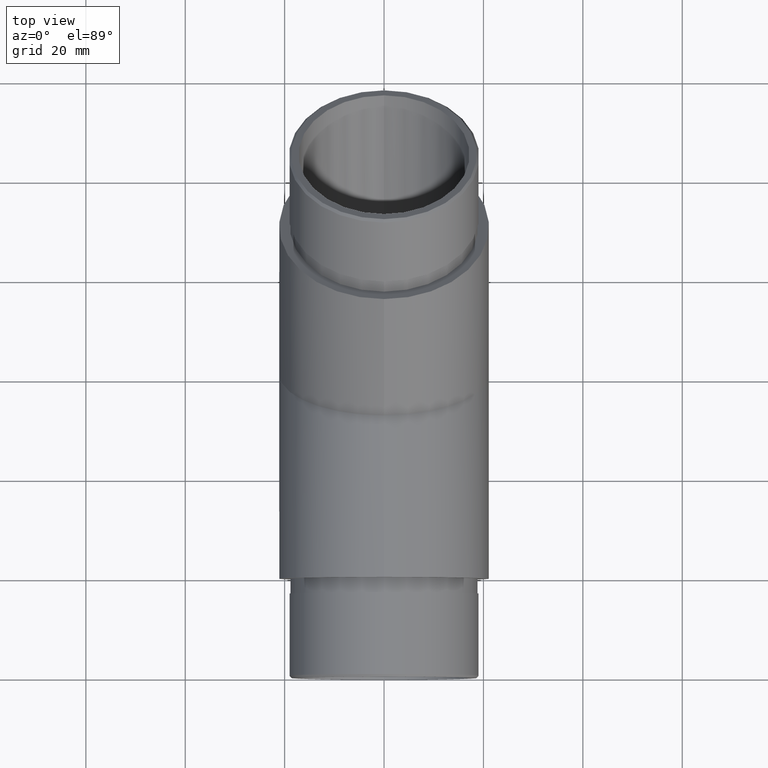
[diagram: clean part render]
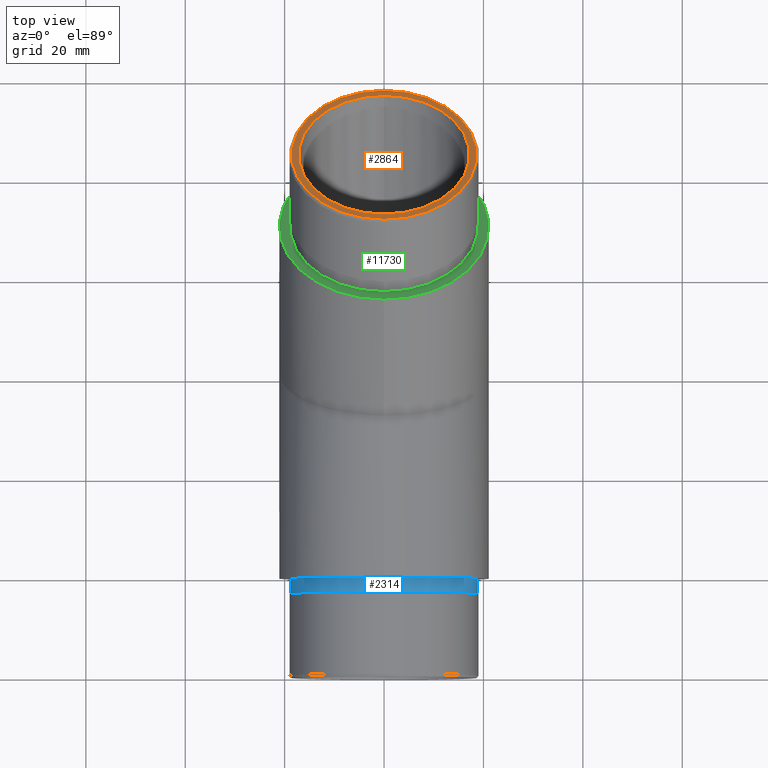
[diagram: same view with three faces highlighted in distinct colors, each labeled with its STEP entity id]
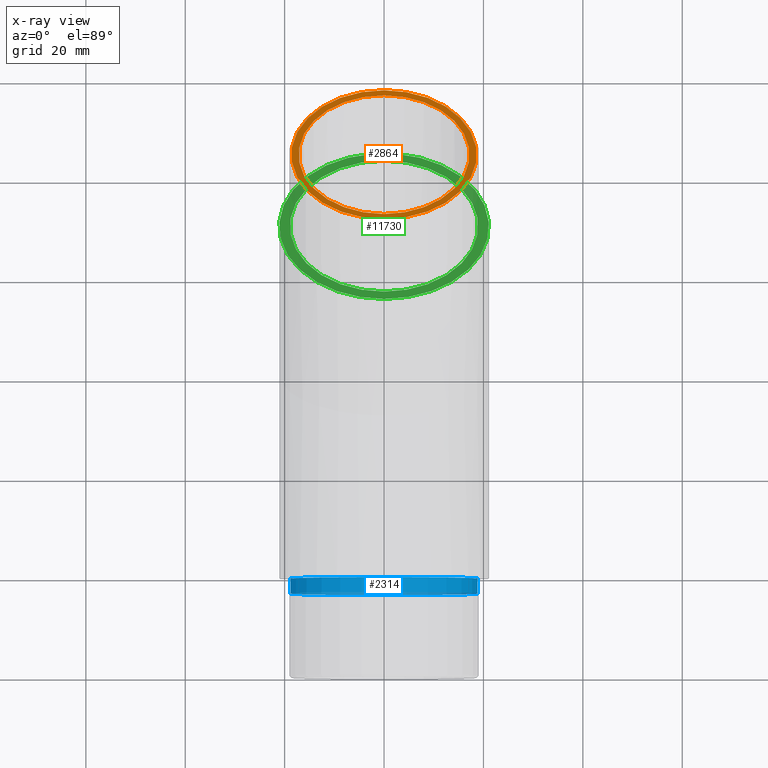
[diagram: x-ray of the same camera — body ghosted, the three highlighted faces saturated]
A machine part, top view with three faces highlighted in distinct colors.
The next image is the same camera in x-ray (body ghosted, the three faces saturated) — at least one of them is partly hidden behind the body in this view.
Their STEP definitions:

[orange] entity #2864 — the highlighted planar face has unit normal (0, 0.7071, 0.7071).
#142 = CIRCLE ( 'NONE', #3992, 17.19999999999999600 ) ;
#373 = ORIENTED_EDGE ( 'NONE', *, *, #8969, .T. ) ;
#810 = EDGE_CURVE ( 'NONE', #6631, #6631, #142, .T. ) ;
#840 = ORIENTED_EDGE ( 'NONE', *, *, #810, .T. ) ;
#1406 = PLANE ( 'NONE',  #4446 ) ;
#1449 = FACE_OUTER_BOUND ( 'NONE', #11126, .T. ) ;
#2305 = CARTESIAN_POINT ( 'NONE',  ( 0.0000000000000000000, 84.57752160002209500, 43.31742776609459600 ) ) ;
#2663 = EDGE_LOOP ( 'NONE', ( #840 ) ) ;
#2864 = ADVANCED_FACE ( 'NONE', ( #1449, #9423 ), #1406, .T. ) ;
#3992 = AXIS2_PLACEMENT_3D ( 'NONE', #5681, #6607, #9931 ) ;
#4311 = DIRECTION ( 'NONE',  ( 0.0000000000000000000, 0.7071067811865458000, 0.7071067811865492400 ) ) ;
#4446 = AXIS2_PLACEMENT_3D ( 'NONE', #7060, #4311, #10866 ) ;
#4526 = CARTESIAN_POINT ( 'NONE',  ( 0.0000000000000000000, 71.38998013089296500, 56.50496923522365500 ) ) ;
#5681 = CARTESIAN_POINT ( 'NONE',  ( 0.0000000000000000000, 84.57752160002209500, 43.31742776609459600 ) ) ;
#5992 = DIRECTION ( 'NONE',  ( 0.0000000000000000000, 0.7071067811865459100, 0.7071067811865492400 ) ) ;
#6607 = DIRECTION ( 'NONE',  ( -0.0000000000000000000, -0.7071067811865459100, -0.7071067811865492400 ) ) ;
#6631 = VERTEX_POINT ( 'NONE', #9192 ) ;
#7060 = CARTESIAN_POINT ( 'NONE',  ( 0.0000000000000000000, 84.57752160002209500, 43.31742776609459600 ) ) ;
#7889 = DIRECTION ( 'NONE',  ( 0.0000000000000000000, -0.7071067811865491300, 0.7071067811865458000 ) ) ;
#8969 = EDGE_CURVE ( 'NONE', #10959, #10959, #10111, .T. ) ;
#9087 = AXIS2_PLACEMENT_3D ( 'NONE', #2305, #5992, #7889 ) ;
#9192 = CARTESIAN_POINT ( 'NONE',  ( 0.0000000000000000000, 96.73975823643073100, 31.15519112968601000 ) ) ;
#9423 = FACE_BOUND ( 'NONE', #2663, .T. ) ;
#9931 = DIRECTION ( 'NONE',  ( 0.0000000000000000000, 0.7071067811865491300, -0.7071067811865459100 ) ) ;
#10111 = CIRCLE ( 'NONE', #9087, 18.64999999999997000 ) ;
#10866 = DIRECTION ( 'NONE',  ( 0.0000000000000000000, 0.7071067811865492400, -0.7071067811865458000 ) ) ;
#10959 = VERTEX_POINT ( 'NONE', #4526 ) ;
#11126 = EDGE_LOOP ( 'NONE', ( #373 ) ) ;

[blue] entity #2314 — the highlighted cylindrical surface (bore or boss wall) has radius 18.95 mm, axis along (-0, 1, -0).
#136 = FACE_OUTER_BOUND ( 'NONE', #7798, .T. ) ;
#1153 = CYLINDRICAL_SURFACE ( 'NONE', #11312, 18.95000000000001000 ) ;
#1205 = VERTEX_POINT ( 'NONE', #8398 ) ;
#1234 = VERTEX_POINT ( 'NONE', #9268 ) ;
#2083 = CARTESIAN_POINT ( 'NONE',  ( 0.0000000000000000000, -3.000000000000000000, 0.0000000000000000000 ) ) ;
#2234 = CARTESIAN_POINT ( 'NONE',  ( 0.0000000000000000000, 0.0000000000000000000, 0.0000000000000000000 ) ) ;
#2314 = ADVANCED_FACE ( 'NONE', ( #136, #10294 ), #1153, .T. ) ;
#2686 = EDGE_CURVE ( 'NONE', #1234, #1234, #7373, .T. ) ;
#2825 = ORIENTED_EDGE ( 'NONE', *, *, #2686, .T. ) ;
#3680 = DIRECTION ( 'NONE',  ( 0.0000000000000000000, -1.000000000000000000, 0.0000000000000000000 ) ) ;
#4049 = DIRECTION ( 'NONE',  ( 0.0000000000000000000, 0.0000000000000000000, 1.000000000000000000 ) ) ;
#5650 = CIRCLE ( 'NONE', #9612, 18.95000000000001000 ) ;
#5874 = DIRECTION ( 'NONE',  ( 0.0000000000000000000, 0.0000000000000000000, 1.000000000000000000 ) ) ;
#7373 = CIRCLE ( 'NONE', #8955, 18.95000000000001000 ) ;
#7418 = EDGE_LOOP ( 'NONE', ( #2825 ) ) ;
#7798 = EDGE_LOOP ( 'NONE', ( #9958 ) ) ;
#8185 = CARTESIAN_POINT ( 'NONE',  ( 0.0000000000000000000, -3.000000000000000000, 0.0000000000000000000 ) ) ;
#8398 = CARTESIAN_POINT ( 'NONE',  ( 0.0000000000000000000, -3.000000000000000000, -18.95000000000001000 ) ) ;
#8645 = DIRECTION ( 'NONE',  ( -0.0000000000000000000, -1.000000000000000000, -0.0000000000000000000 ) ) ;
#8955 = AXIS2_PLACEMENT_3D ( 'NONE', #2234, #8645, #4049 ) ;
#9079 = DIRECTION ( 'NONE',  ( 0.0000000000000000000, 0.0000000000000000000, -1.000000000000000000 ) ) ;
#9268 = CARTESIAN_POINT ( 'NONE',  ( 0.0000000000000000000, 0.0000000000000000000, 18.95000000000001000 ) ) ;
#9612 = AXIS2_PLACEMENT_3D ( 'NONE', #8185, #3680, #9079 ) ;
#9958 = ORIENTED_EDGE ( 'NONE', *, *, #11485, .F. ) ;
#10294 = FACE_OUTER_BOUND ( 'NONE', #7418, .T. ) ;
#11312 = AXIS2_PLACEMENT_3D ( 'NONE', #2083, #11476, #5874 ) ;
#11476 = DIRECTION ( 'NONE',  ( -0.0000000000000000000, 1.000000000000000000, -0.0000000000000000000 ) ) ;
#11485 = EDGE_CURVE ( 'NONE', #1205, #1205, #5650, .T. ) ;

[green] entity #11730 — the highlighted planar face has unit normal (0, 0.7071, 0.7071).
#265 = EDGE_CURVE ( 'NONE', #2019, #2019, #4202, .T. ) ;
#1759 = ORIENTED_EDGE ( 'NONE', *, *, #265, .F. ) ;
#1939 = ORIENTED_EDGE ( 'NONE', *, *, #5128, .F. ) ;
#2019 = VERTEX_POINT ( 'NONE', #12058 ) ;
#2087 = CARTESIAN_POINT ( 'NONE',  ( 0.0000000000000000000, 70.43538597629114400, 29.17529214236356700 ) ) ;
#2488 = EDGE_LOOP ( 'NONE', ( #1759 ) ) ;
#2702 = DIRECTION ( 'NONE',  ( 0.0000000000000000000, -0.7071067811865486800, 0.7071067811865464600 ) ) ;
#3020 = CARTESIAN_POINT ( 'NONE',  ( 0.0000000000000000000, 70.43538597629114400, 29.17529214236356300 ) ) ;
#3095 = DIRECTION ( 'NONE',  ( 0.0000000000000000000, 0.7071067811865463500, 0.7071067811865487900 ) ) ;
#3225 = VERTEX_POINT ( 'NONE', #7432 ) ;
#3550 = CARTESIAN_POINT ( 'NONE',  ( 0.0000000000000000000, 70.43538597629113000, 29.17529214236357000 ) ) ;
#3903 = FACE_BOUND ( 'NONE', #8413, .T. ) ;
#4202 = CIRCLE ( 'NONE', #4698, 21.09999999999999400 ) ;
#4698 = AXIS2_PLACEMENT_3D ( 'NONE', #2087, #6859, #4918 ) ;
#4918 = DIRECTION ( 'NONE',  ( 0.0000000000000000000, -0.7071067811865487900, 0.7071067811865463500 ) ) ;
#5128 = EDGE_CURVE ( 'NONE', #3225, #3225, #9892, .T. ) ;
#5416 = AXIS2_PLACEMENT_3D ( 'NONE', #3020, #3095, #9527 ) ;
#5492 = DIRECTION ( 'NONE',  ( 0.0000000000000000000, 0.7071067811865463500, 0.7071067811865487900 ) ) ;
#6859 = DIRECTION ( 'NONE',  ( -0.0000000000000000000, -0.7071067811865463500, -0.7071067811865487900 ) ) ;
#7432 = CARTESIAN_POINT ( 'NONE',  ( 0.0000000000000000000, 57.03571247280603300, 42.57496564584862900 ) ) ;
#7644 = AXIS2_PLACEMENT_3D ( 'NONE', #3550, #5492, #2702 ) ;
#7671 = PLANE ( 'NONE',  #5416 ) ;
#8413 = EDGE_LOOP ( 'NONE', ( #1939 ) ) ;
#9527 = DIRECTION ( 'NONE',  ( 0.0000000000000000000, -0.7071067811865487900, 0.7071067811865463500 ) ) ;
#9892 = CIRCLE ( 'NONE', #7644, 18.95000000000000600 ) ;
#11730 = ADVANCED_FACE ( 'NONE', ( #3903, #11928 ), #7671, .T. ) ;
#11928 = FACE_OUTER_BOUND ( 'NONE', #2488, .T. ) ;
#12058 = CARTESIAN_POINT ( 'NONE',  ( 0.0000000000000000000, 55.51543289325497500, 44.09524522539968700 ) ) ;